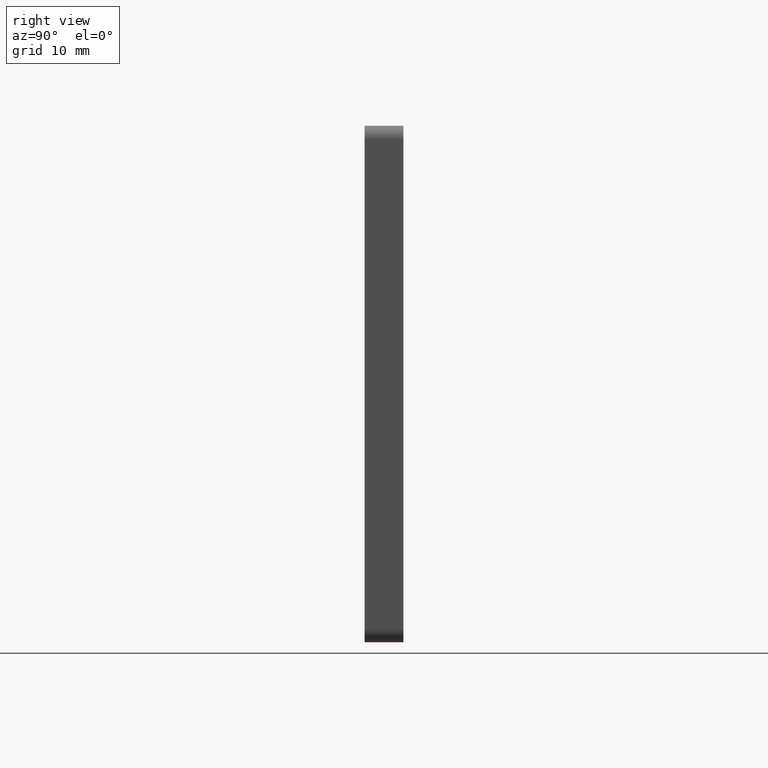
[diagram: clean part render]
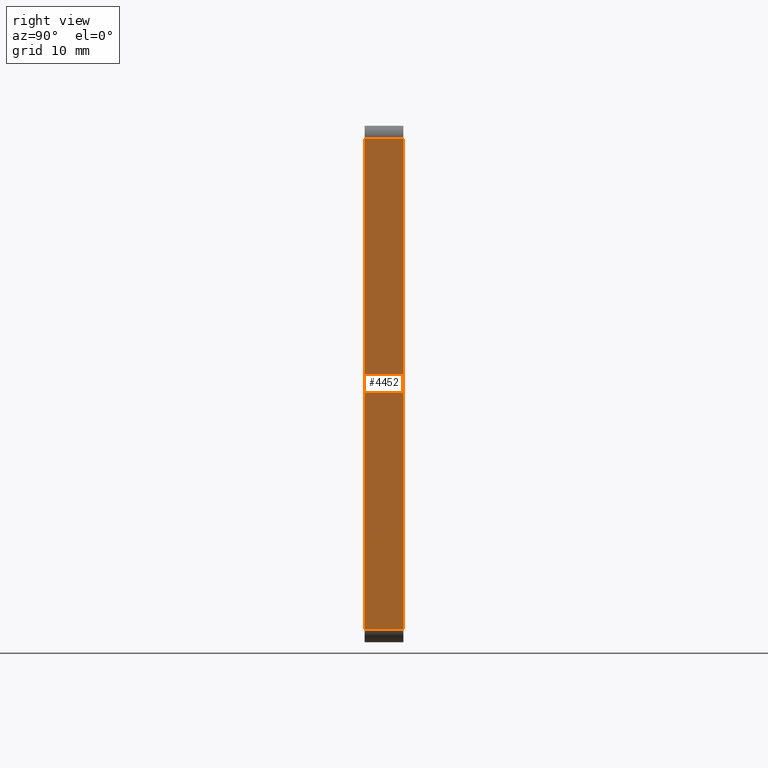
[diagram: same view with one face highlighted and labeled with its STEP entity id]
A machine part, right view. The second image highlights one B-rep face of the part: STEP entity #4452.
In plain terms, the highlighted planar face has unit normal (-1, 0, 0).
Its self-contained STEP definition (entity closure, byte-faithful):
#181 = PLANE ( 'NONE',  #9926 ) ;
#237 = VECTOR ( 'NONE', #2120, 1000.000000000000000 ) ;
#344 = LINE ( 'NONE', #3332, #7420 ) ;
#1166 = EDGE_CURVE ( 'NONE', #4677, #10563, #4399, .T. ) ;
#1753 = EDGE_CURVE ( 'NONE', #6629, #4185, #7677, .T. ) ;
#2120 = DIRECTION ( 'NONE',  ( -0.000000000000000000, 1.000000000000000000, -0.000000000000000000 ) ) ;
#2210 = EDGE_CURVE ( 'NONE', #10563, #6629, #4372, .T. ) ;
#2226 = CARTESIAN_POINT ( 'NONE',  ( 40.00000000000001421, 0.000000000000000000, -37.99999999999999289 ) ) ;
#2903 = ORIENTED_EDGE ( 'NONE', *, *, #1166, .T. ) ;
#3048 = CARTESIAN_POINT ( 'NONE',  ( 40.00000000000002132, 6.000000000000000000, 38.00000000000000711 ) ) ;
#3332 = CARTESIAN_POINT ( 'NONE',  ( 40.00000000000001421, 6.000000000000000000, -39.99999999999999289 ) ) ;
#3977 = ORIENTED_EDGE ( 'NONE', *, *, #5691, .F. ) ;
#4185 = VERTEX_POINT ( 'NONE', #8405 ) ;
#4372 = LINE ( 'NONE', #14589, #7110 ) ;
#4399 = LINE ( 'NONE', #14678, #12420 ) ;
#4452 = ADVANCED_FACE ( 'NONE', ( #10727 ), #181, .F. ) ;
#4677 = VERTEX_POINT ( 'NONE', #3048 ) ;
#4826 = DIRECTION ( 'NONE',  ( 8.673617379884034239E-17, 0.000000000000000000, 1.000000000000000000 ) ) ;
#5173 = DIRECTION ( 'NONE',  ( -8.673617379884035472E-17, -0.000000000000000000, -1.000000000000000000 ) ) ;
#5691 = EDGE_CURVE ( 'NONE', #4677, #4185, #344, .T. ) ;
#6629 = VERTEX_POINT ( 'NONE', #2226 ) ;
#7110 = VECTOR ( 'NONE', #5173, 1000.000000000000000 ) ;
#7420 = VECTOR ( 'NONE', #11462, 1000.000000000000000 ) ;
#7677 = LINE ( 'NONE', #13837, #237 ) ;
#8405 = CARTESIAN_POINT ( 'NONE',  ( 40.00000000000001421, 6.000000000000000000, -37.99999999999999289 ) ) ;
#8893 = DIRECTION ( 'NONE',  ( 0.000000000000000000, -1.000000000000000000, 0.000000000000000000 ) ) ;
#9685 = EDGE_LOOP ( 'NONE', ( #14194, #11539, #3977, #2903 ) ) ;
#9926 = AXIS2_PLACEMENT_3D ( 'NONE', #11807, #13984, #4826 ) ;
#10563 = VERTEX_POINT ( 'NONE', #14927 ) ;
#10727 = FACE_OUTER_BOUND ( 'NONE', #9685, .T. ) ;
#11462 = DIRECTION ( 'NONE',  ( -8.673617379884035472E-17, -0.000000000000000000, -1.000000000000000000 ) ) ;
#11539 = ORIENTED_EDGE ( 'NONE', *, *, #1753, .T. ) ;
#11807 = CARTESIAN_POINT ( 'NONE',  ( 40.00000000000001421, 6.000000000000000000, -39.99999999999999289 ) ) ;
#12420 = VECTOR ( 'NONE', #8893, 1000.000000000000000 ) ;
#13837 = CARTESIAN_POINT ( 'NONE',  ( 40.00000000000001421, 6.000000000000000000, -37.99999999999999289 ) ) ;
#13984 = DIRECTION ( 'NONE',  ( -1.000000000000000000, 0.000000000000000000, 8.673617379884034239E-17 ) ) ;
#14194 = ORIENTED_EDGE ( 'NONE', *, *, #2210, .T. ) ;
#14589 = CARTESIAN_POINT ( 'NONE',  ( 40.00000000000001421, 0.000000000000000000, -39.99999999999999289 ) ) ;
#14678 = CARTESIAN_POINT ( 'NONE',  ( 40.00000000000002132, 6.000000000000000000, 38.00000000000000711 ) ) ;
#14927 = CARTESIAN_POINT ( 'NONE',  ( 40.00000000000002132, 0.000000000000000000, 38.00000000000000711 ) ) ;